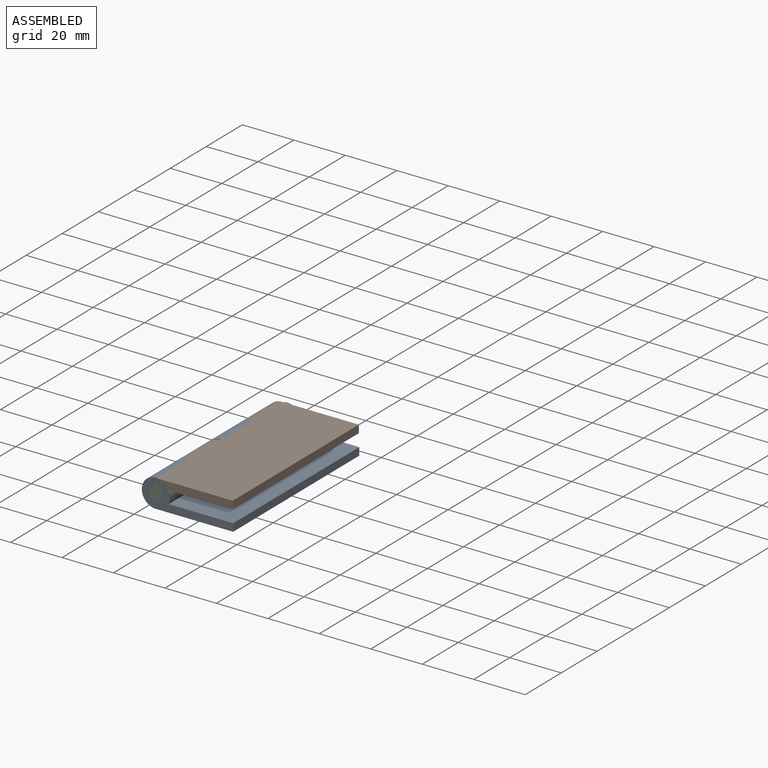
[diagram: assembled view]
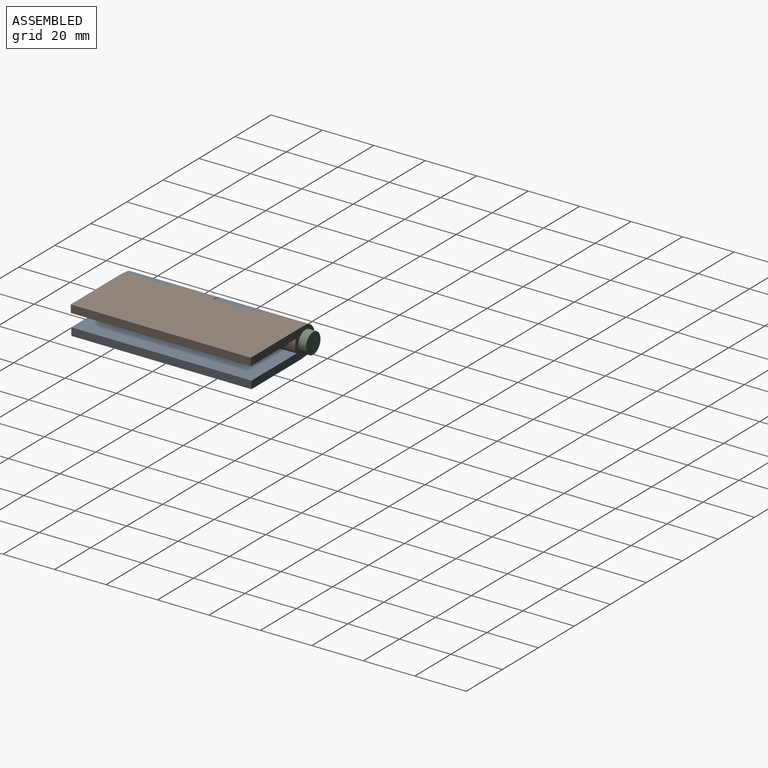
[diagram: assembled view, second angle]
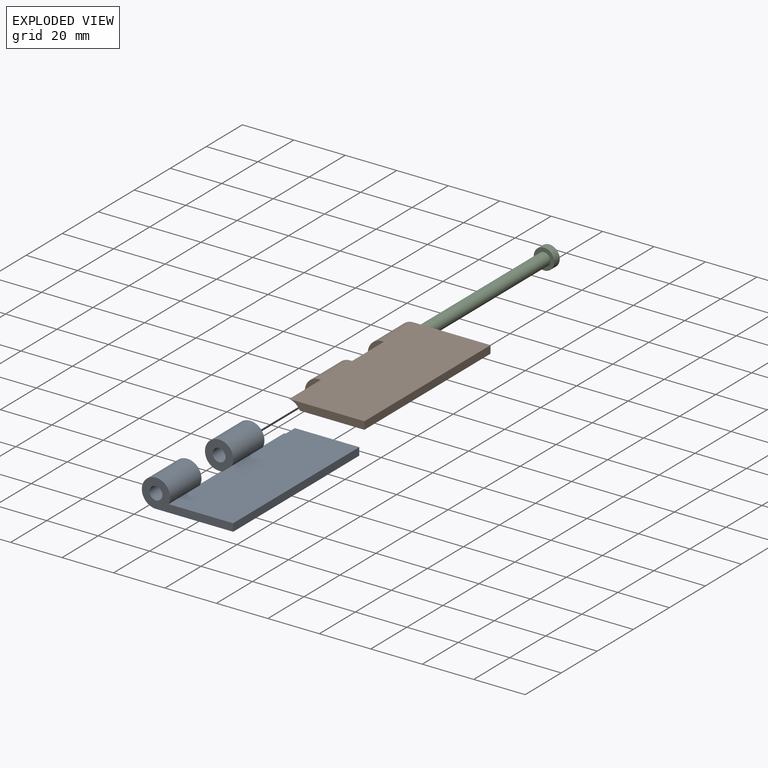
[diagram: exploded view]
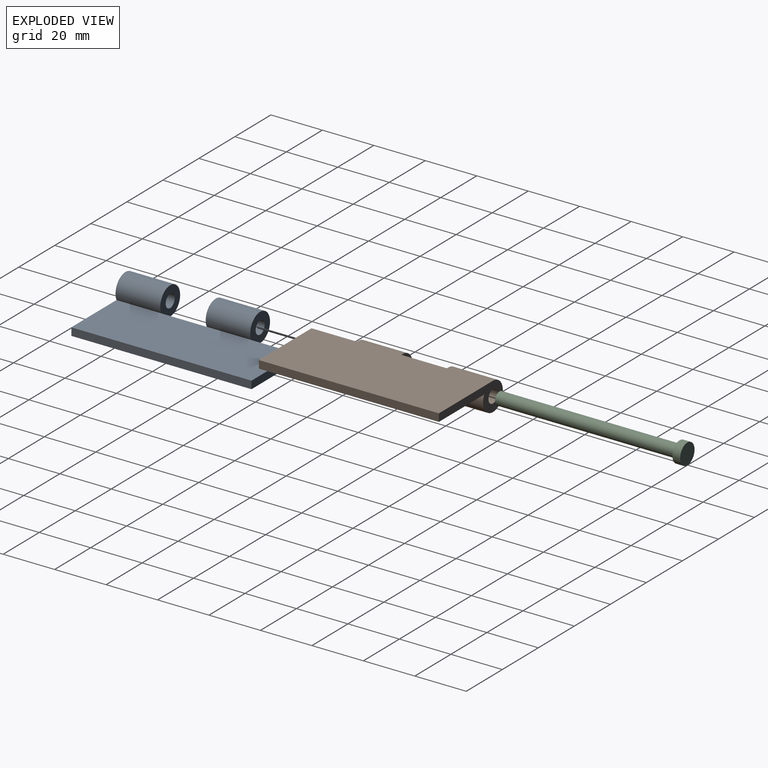
[diagram: exploded view, second angle]
FCSTD DOCUMENT  (FreeCAD 1.0R)
Label: ave door hinge
License: All rights reserved
LicenseURL: https://en.wikipedia.org/wiki/All_rights_reserved
objects: Sketcher::SketchObject×10, PartDesign::Pad×6, PartDesign::Pocket×4, PartDesign::Body×3, App::Link×3, App::FeaturePython×3, PartDesign::LinearPattern×2, PartDesign::MultiTransform×2, Spreadsheet::Sheet×1, Assembly::JointGroup×1, Assembly::AssemblyObject×1
note: 61 computed .brp shape members not serialized (recipe doc carries the construction recipe); baked Part::Feature solids carry a one-line shape summary decoded from their .brp

FEATURE [Spreadsheet::Sheet] Spreadsheet  label="demensions"
  cells = A1='base width; B1(bw)=70; A2='base depth; B2(bd)=30; A3='base height; B3(bh)=3; A5='circle inner size; B5(cs)=5; A7='pin end depth; B7(pe)=3; A9='tolerance; B9(to)=0.1
FEATURE [Sketcher::SketchObject] Sketch
  ArcFitTolerance = 1e-06
  AttachmentSupport = -> [XY_Plane]
  FullyConstrained = true
  MakeInternals = false
  MapMode = 5
  expr: Constraints[10] = <<demensions>>.bd
  expr: Constraints[11] = <<demensions>>.bw
  sketch-geometry (5):
    g0: LineSegment StartX=-15 StartY=-35 StartZ=0 EndX=15 EndY=-35 EndZ=0
    g1: LineSegment StartX=15 StartY=-35 StartZ=0 EndX=15 EndY=35 EndZ=0
    g2: LineSegment StartX=15 StartY=35 StartZ=0 EndX=-15 EndY=35 EndZ=0
    g3: LineSegment StartX=-15 StartY=35 StartZ=0 EndX=-15 EndY=-35 EndZ=0
    g4: GeomPoint [constr] X=0 Y=-3e-16 Z=0
  constraints (12):
    c: Coincident(g0,g1)
    c: Coincident(g1,g2)
    c: Coincident(g2,g3)
    c: Coincident(g3,g0)
    c: Horizontal(g0)
    c: Horizontal(g2)
    c: Vertical(g1)
    c: Vertical(g3)
    c: Symmetric(g2,g0,g4)
    c: Coincident(g4,g-1)
    c: DistanceX(g2,g2) = 30
    c: DistanceY(g1,g1) = 70
FEATURE [PartDesign::Pad] Pad
  Direction = (0,0,1)
  Length = 3
  Length2 = 10
  Profile = -> Sketch
  ReferenceAxis = -> Sketch [N_Axis]
  Refine = true
  Suppressed = false
  Type = 0
  expr: Length = <<demensions>>.bh
FEATURE [Sketcher::SketchObject] Sketch001
  ArcFitTolerance = 1e-06
  AttachmentSupport = -> [Pad]
  ExternalGeometry = -> [Pad]
  FullyConstrained = true
  MakeInternals = false
  MapMode = 5
  Placement = pos=(0,-35,0) rot=(1,0,0;1.5708rad)
  expr: Constraints[1] = <<demensions>>.cs
  expr: Constraints[2] = <<demensions>>.bh
  expr: Constraints[4] = -<<demensions>>.cs / 2
  sketch-geometry (2):
    g0: Circle CenterX=-15 CenterY=5.5 CenterZ=0 NormalX=0 NormalY=0 NormalZ=1 AngleXU=0 Radius=2.5
    g1: Circle CenterX=-15 CenterY=5.5 CenterZ=0 NormalX=0 NormalY=0 NormalZ=1 AngleXU=0 Radius=5.5
  constraints (5):
    c: Coincident(g1,g0)
    c: Diameter(g0) = 5
    c: Distance(g0,g1) = 3
    c: Tangent(g1,g-1)
    c: Distance(g0,g-3) = -2.5
FEATURE [PartDesign::Pad] Pad001
  BaseFeature = -> Pad
  Direction = (0,-1,2e-16)
  Length = 17.4
  Length2 = 10
  Profile = -> Sketch001
  ReferenceAxis = -> Sketch001 [N_Axis]
  Refine = true
  Reversed = true
  Suppressed = false
  Type = 0
  expr: Length = <<demensions>>.bw / 4 - <<demensions>>.to
FEATURE [PartDesign::LinearPattern] LinearPattern
  Direction = -> Y_Axis
  Length = 34.95
  Mode = 0
  Occurrences = 2
  Offset = 34.95
  Refine = true
  Suppressed = false
  TransformMode = 0
  expr: Length = <<demensions>>.bw / 2 - <<demensions>>.to / 2
FEATURE [PartDesign::MultiTransform] MultiTransform
  BaseFeature = -> Pad001
  Originals = -> [Pad001]
  Refine = true
  Suppressed = false
  TransformMode = 0
  Transformations = -> [LinearPattern]
FEATURE [Sketcher::SketchObject] Sketch002
  ArcFitTolerance = 1e-06
  AttachmentSupport = -> [XY_Plane001]
  FullyConstrained = false
  MakeInternals = false
  MapMode = 5
  expr: Constraints[10] = <<demensions>>.bd
  expr: Constraints[11] = <<demensions>>.bw
  sketch-geometry (5):
    g0: LineSegment StartX=-66.0282 StartY=35 StartZ=0 EndX=-96.0282 EndY=35 EndZ=0
    g1: LineSegment StartX=-96.0282 StartY=35 StartZ=0 EndX=-96.0282 EndY=-35 EndZ=0
    g2: LineSegment StartX=-96.0282 StartY=-35 StartZ=0 EndX=-66.0282 EndY=-35 EndZ=0
    g3: LineSegment StartX=-66.0282 StartY=-35 StartZ=0 EndX=-66.0282 EndY=35 EndZ=0
    g4: GeomPoint [constr] X=-81.0282 Y=3e-16 Z=0
  constraints (12):
    c: Coincident(g0,g1)
    c: Coincident(g1,g2)
    c: Coincident(g2,g3)
    c: Coincident(g3,g0)
    c: Horizontal(g0)
    c: Horizontal(g2)
    c: Vertical(g1)
    c: Vertical(g3)
    c: Symmetric(g2,g0,g4)
    c: PointOnObject(g4,g-1)
    c: DistanceX(g2,g2) = 30
    c: DistanceY(g3,g3) = 70
FEATURE [PartDesign::Pad] Pad002
  Direction = (0,0,1)
  Length = 3
  Length2 = 10
  Profile = -> Sketch002
  ReferenceAxis = -> Sketch002 [N_Axis]
  Refine = true
  Suppressed = false
  Type = 0
  expr: Length = <<demensions>>.bh
FEATURE [Sketcher::SketchObject] Sketch003
  ArcFitTolerance = 1e-06
  AttachmentSupport = -> [Pad002]
  ExternalGeometry = -> [Pad002]
  FullyConstrained = true
  MakeInternals = false
  MapMode = 5
  Placement = pos=(0,35,0) rot=(0,0.707107,0.707107;3.14159rad)
  expr: Constraints[1] = <<demensions>>.cs
  expr: Constraints[2] = <<demensions>>.bh
  expr: Constraints[4] = -<<demensions>>.cs / 2
  sketch-geometry (2):
    g0: Circle CenterX=66.0282 CenterY=5.5 CenterZ=0 NormalX=0 NormalY=0 NormalZ=1 AngleXU=0 Radius=2.5
    g1: Circle CenterX=66.0282 CenterY=5.5 CenterZ=0 NormalX=0 NormalY=0 NormalZ=1 AngleXU=0 Radius=5.5
  constraints (5):
    c: Coincident(g1,g0)
    c: Diameter(g0) = 5
    c: Distance(g0,g1) = 3
    c: Tangent(g1,g-1)
    c: Distance(g0,g-3) = -2.5
FEATURE [PartDesign::Pad] Pad003
  BaseFeature = -> Pad002
  Direction = (0,1,-2e-16)
  Length = 17.4
  Length2 = 10
  Profile = -> Sketch003
  ReferenceAxis = -> Sketch003 [N_Axis]
  Refine = true
  Reversed = true
  Suppressed = false
  Type = 0
  expr: Length = <<demensions>>.bw / 4 - <<demensions>>.to
FEATURE [PartDesign::LinearPattern] LinearPattern001
  Direction = -> Y_Axis001
  Length = 34.95
  Mode = 0
  Occurrences = 2
  Offset = 34.95
  Refine = true
  Reversed = true
  Suppressed = false
  TransformMode = 0
  expr: Length = <<demensions>>.bw / 2 - <<demensions>>.to / 2
FEATURE [PartDesign::MultiTransform] MultiTransform001
  BaseFeature = -> Pad003
  Originals = -> [Pad003]
  Refine = true
  Suppressed = false
  TransformMode = 0
  Transformations = -> [LinearPattern001]
FEATURE [Sketcher::SketchObject] Sketch004
  ArcFitTolerance = 1e-06
  AttachmentSupport = -> [XZ_Plane003]
  FullyConstrained = false
  MakeInternals = false
  MapMode = 5
  Placement = pos=(0,0,0) rot=(1,0,0;1.5708rad)
  expr: Constraints[0] = <<demensions>>.cs - <<demensions>>.to
  sketch-geometry (1):
    g0: Circle CenterX=-42.4747 CenterY=8.43827 CenterZ=0 NormalX=0 NormalY=0 NormalZ=1 AngleXU=0 Radius=2.45
  constraints (1):
    c: Diameter(g0) = 4.9
FEATURE [PartDesign::Pad] Pad004
  Direction = (0,-1,2e-16)
  Length = 35
  Length2 = 35
  Placement = pos=(0,0,0) rot=(1,0,0;1.5708rad)
  Profile = -> Sketch004
  ReferenceAxis = -> Sketch004 [N_Axis]
  Refine = true
  Suppressed = false
  Type = 4
  expr: Length = <<demensions>>.bw / 2
  expr: Length2 = <<demensions>>.bw / 2
FEATURE [Sketcher::SketchObject] Sketch005
  ArcFitTolerance = 1e-06
  AttachmentSupport = -> [Pad004]
  ExternalGeometry = -> [Pad004]
  FullyConstrained = true
  MakeInternals = false
  MapMode = 5
  Placement = pos=(0,35,0) rot=(-1,0,0;1.5708rad)
  expr: Constraints[1] = <<demensions>>.cs + <<demensions>>.bh
  sketch-geometry (1):
    g0: Circle CenterX=-42.4747 CenterY=-8.43827 CenterZ=0 NormalX=0 NormalY=0 NormalZ=1 AngleXU=0 Radius=4
  constraints (2):
    c: Coincident(g0,g-3)
    c: Diameter(g0) = 8
FEATURE [PartDesign::Pad] Pad005
  BaseFeature = -> Pad004
  Direction = (0,1,2e-16)
  Length = 3
  Length2 = 10
  Placement = pos=(0,0,0) rot=(1,0,0;1.5708rad)
  Profile = -> Sketch005 [Edge1]
  ReferenceAxis = -> Sketch005 [N_Axis]
  Refine = true
  Suppressed = false
  Type = 0
  expr: Length = <<demensions>>.pe
FEATURE [PartDesign::Body] Body004
  AllowCompound = false
  Group = -> [Sketch004,Pad004,Sketch005,Pad005]
  Origin = -> Origin003
  Tip = -> Pad005
FEATURE [Sketcher::SketchObject] Sketch006
  ArcFitTolerance = 1e-06
  AttachmentSupport = -> [MultiTransform]
  ExternalGeometry = -> [MultiTransform]
  FullyConstrained = true
  MakeInternals = false
  MapMode = 5
  Placement = pos=(0,-17.6,0) rot=(0,0.707107,0.707107;3.14159rad)
  expr: Constraints[1] = <<demensions>>.cs + <<demensions>>.bh * 2 + <<demensions>>.to
  sketch-geometry (1):
    g0: Circle CenterX=15 CenterY=5.5 CenterZ=0 NormalX=0 NormalY=0 NormalZ=1 AngleXU=0 Radius=5.55
  constraints (2):
    c: Coincident(g0,g-4)
    c: Diameter(g0) = 11.1
FEATURE [PartDesign::Pocket] Pocket
  BaseFeature = -> MultiTransform
  Direction = (0,-1,2e-16)
  Length = 17.65
  Length2 = 5
  Profile = -> Sketch006
  ReferenceAxis = -> Sketch006 [N_Axis]
  Refine = true
  Reversed = true
  Suppressed = false
  Type = 0
  expr: Length = <<demensions>>.bw / 4 + <<demensions>>.to + <<demensions>>.to / 2
FEATURE [Sketcher::SketchObject] Sketch007
  ArcFitTolerance = 1e-06
  AttachmentSupport = -> [Pocket]
  ExternalGeometry = -> [Pocket]
  FullyConstrained = true
  MakeInternals = false
  MapMode = 5
  Placement = pos=(0,17.35,0) rot=(0,0.707107,0.707107;3.14159rad)
  expr: Constraints[1] = <<demensions>>.cs + <<demensions>>.bh * 2 + <<demensions>>.to
  sketch-geometry (1):
    g0: Circle CenterX=15 CenterY=5.5 CenterZ=0 NormalX=0 NormalY=0 NormalZ=1 AngleXU=0 Radius=5.55
  constraints (2):
    c: Coincident(g0,g-4)
    c: Diameter(g0) = 11.1
FEATURE [Sketcher::SketchObject] Sketch008
  ArcFitTolerance = 1e-06
  AttachmentSupport = -> [MultiTransform001]
  ExternalGeometry = -> [MultiTransform001]
  FullyConstrained = true
  MakeInternals = false
  MapMode = 5
  Placement = pos=(0,17.6,0) rot=(1,0,0;1.5708rad)
  expr: Constraints[1] = <<demensions>>.cs + <<demensions>>.bh * 2 + <<demensions>>.to
  sketch-geometry (1):
    g0: Circle CenterX=-66.0282 CenterY=5.5 CenterZ=0 NormalX=0 NormalY=0 NormalZ=1 AngleXU=0 Radius=5.55
  constraints (2):
    c: Coincident(g0,g-3)
    c: Diameter(g0) = 11.1
FEATURE [Sketcher::SketchObject] Sketch009
  ArcFitTolerance = 1e-06
  AttachmentSupport = -> [MultiTransform001]
  ExternalGeometry = -> [MultiTransform001]
  FullyConstrained = true
  MakeInternals = false
  MapMode = 5
  Placement = pos=(0,-17.35,0) rot=(1,0,0;1.5708rad)
  expr: Constraints[1] = <<demensions>>.cs + <<demensions>>.bh * 2 + <<demensions>>.to
  sketch-geometry (1):
    g0: Circle CenterX=-66.0282 CenterY=5.5 CenterZ=0 NormalX=0 NormalY=0 NormalZ=1 AngleXU=0 Radius=5.55
  constraints (2):
    c: Coincident(g0,g-3)
    c: Diameter(g0) = 11.1
FEATURE [PartDesign::Pocket] Pocket001
  BaseFeature = -> MultiTransform001
  Direction = (0,1,-2e-16)
  Length = 17.65
  Length2 = 5
  Profile = -> Sketch008 [Edge1]
  ReferenceAxis = -> Sketch008 [N_Axis]
  Refine = true
  Reversed = true
  Suppressed = false
  Type = 0
  expr: Length = <<demensions>>.bw / 4 + <<demensions>>.to + <<demensions>>.to / 2
FEATURE [PartDesign::Pocket] Pocket002
  BaseFeature = -> Pocket001
  Direction = (0,1,-2e-16)
  Length = 17.65
  Length2 = 5
  Profile = -> Sketch009 [Edge1]
  ReferenceAxis = -> Sketch009 [N_Axis]
  Refine = true
  Reversed = true
  Suppressed = false
  Type = 0
  expr: Length = <<demensions>>.bw / 4 + <<demensions>>.to + <<demensions>>.to / 2
FEATURE [PartDesign::Body] Body001
  AllowCompound = false
  Group = -> [Sketch002,Pad002,Sketch003,Pad003,MultiTransform001,LinearPattern001,Sketch008,Sketch009,Pocket001,Pocket002]
  Origin = -> Origin001
  Tip = -> Pocket002
FEATURE [PartDesign::Pocket] Pocket003
  BaseFeature = -> Pocket
  Direction = (0,-1,2e-16)
  Length = 17.65
  Length2 = 5
  Profile = -> Sketch007 [Edge1]
  ReferenceAxis = -> Sketch007 [N_Axis]
  Refine = true
  Reversed = true
  Suppressed = false
  Type = 0
  expr: Length = <<demensions>>.bw / 4 + <<demensions>>.to + <<demensions>>.to / 2
FEATURE [PartDesign::Body] Body
  AllowCompound = false
  Group = -> [Sketch,Pad,Sketch001,Pad001,MultiTransform,LinearPattern,Sketch006,Pocket,Sketch007,Pocket003]
  Origin = -> Origin
  Tip = -> Pocket003
FEATURE [App::Link] Body005
  LinkedObject = -> Body
FEATURE [App::FeaturePython] GroundedJoint  # Assembly grounded joint (typed FeaturePython)
  ObjectToGround = -> Body005
FEATURE [App::Link] Body006
  LinkPlacement = pos=(-81.0282,-0.25,11) rot=(0,1,0;3.14159rad)
  LinkedObject = -> Body001
  Placement = pos=(-81.0282,-0.25,11) rot=(0,1,0;3.14159rad)
FEATURE [App::Link] Body007
  LinkPlacement = pos=(27.4747,-6e-16,-2.93827) rot=(0,0,1;0rad)
  LinkedObject = -> Body004
  Placement = pos=(27.4747,-6e-16,-2.93827) rot=(0,0,1;0rad)
FEATURE [App::FeaturePython] Joint  label="Slider"  # Assembly joint (typed FeaturePython)
  Activated = true
  AngleMax = 0
  AngleMin = 0
  Detach1 = false
  Detach2 = false
  Distance = 0
  Distance2 = 0
  EnableAngleMax = false
  EnableAngleMin = false
  EnableLengthMax = false
  EnableLengthMin = true
  JointType = 3 (Slider)
  LengthMax = 0
  LengthMin = 0
  Placement1 = pos=(-42.4747,-35,8.43827) rot=(1,0,0;1.5708rad)
  Placement2 = pos=(-15,-35,5.5) rot=(1,0,0;1.5708rad)
  Reference1 = -> Assembly [Body007.Edge3,Body007.Edge3]
  Reference2 = -> Assembly [Body005.Edge35,Body005.Edge35]
FEATURE [App::FeaturePython] Joint001  label="Revolute"  # Assembly joint (typed FeaturePython)
  Activated = true
  AngleMax = 180
  AngleMin = 0
  Detach1 = false
  Detach2 = false
  Distance = 0
  Distance2 = 0
  EnableAngleMax = true
  EnableAngleMin = true
  EnableLengthMax = false
  EnableLengthMin = false
  JointType = 1 (Revolute)
  LengthMax = 0
  LengthMin = 0
  Placement1 = pos=(-15,-17.6,5.5) rot=(1,0,0;1.5708rad)
  Placement2 = pos=(-66.0282,-17.35,5.5) rot=(0,-0.707107,-0.707107;3.14159rad)
  Reference1 = -> Assembly [Body005.Edge15,Body005.Edge15]
  Reference2 = -> Assembly [Body006.Edge42,Body006.Edge42]
FEATURE [Assembly::JointGroup] Joints
  Group = -> [GroundedJoint,Joint,Joint001]
FEATURE [Assembly::AssemblyObject] Assembly
  Group = -> [Joints,Body005,GroundedJoint,Body006,Body007,Joint,Joint001]
  Origin = -> Origin004
  Type = Assembly
